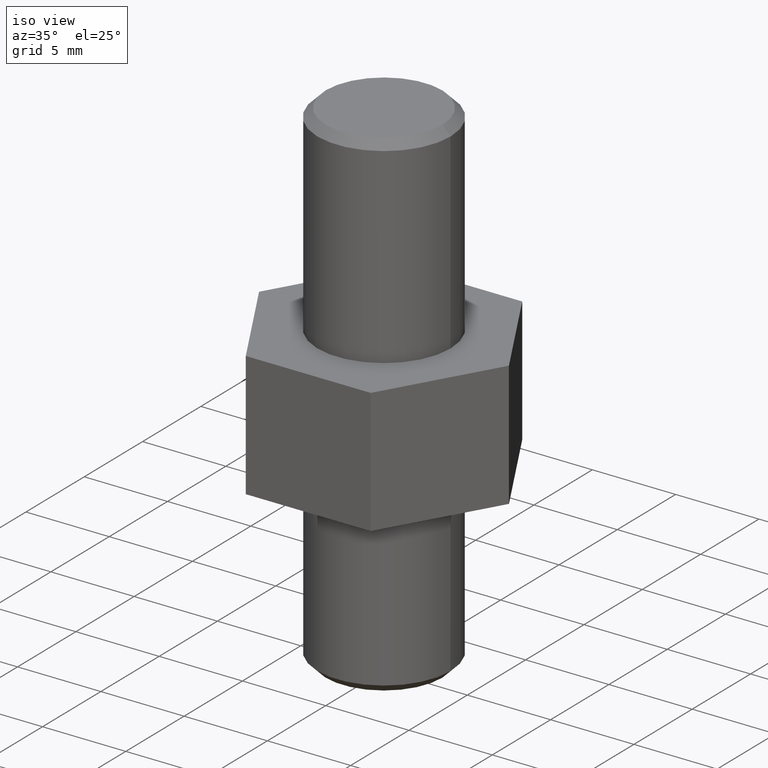
[diagram: clean part render]
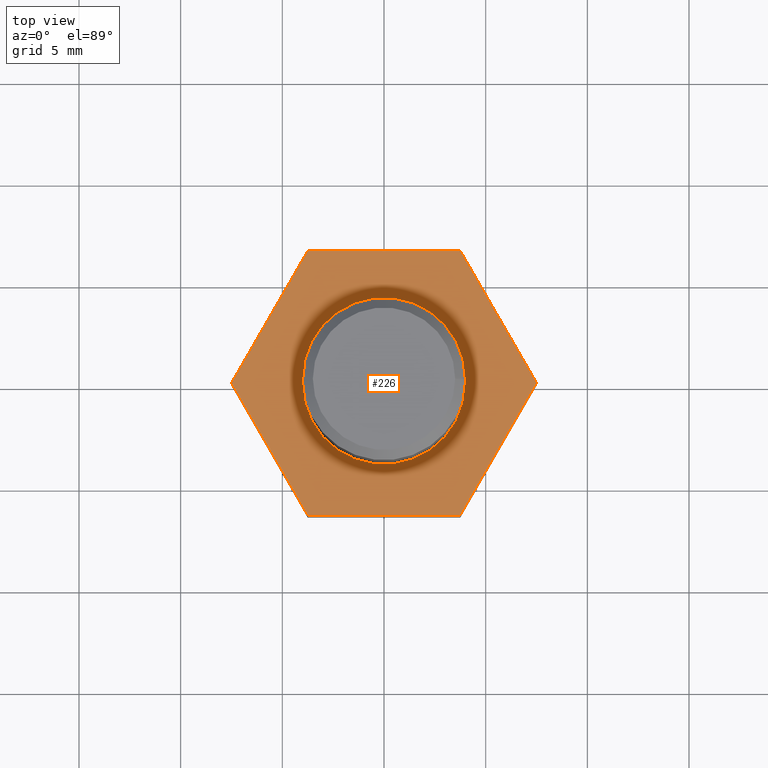
[diagram: tour spotlight — one face highlighted and labeled with its STEP entity id]
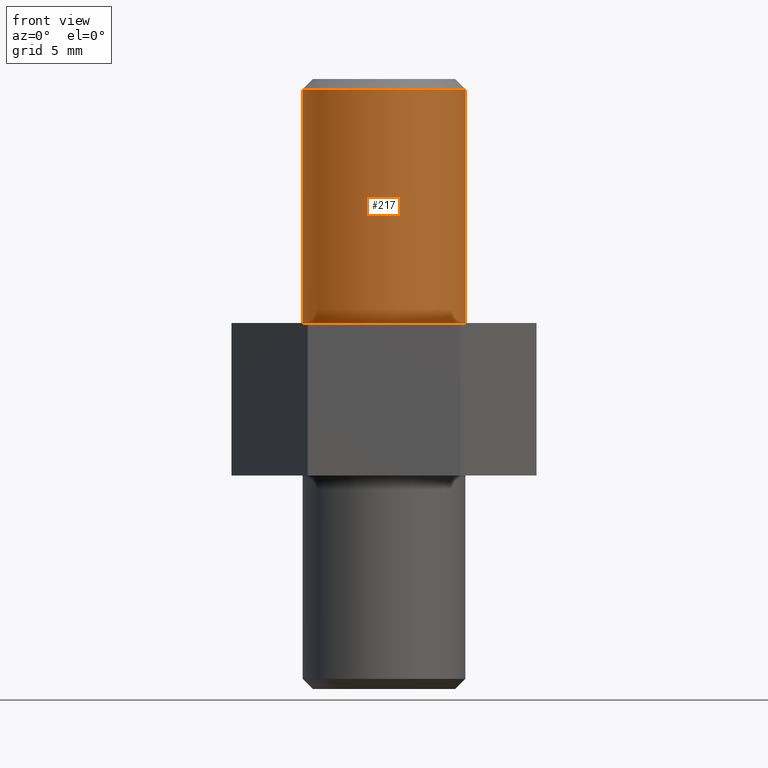
[diagram: tour spotlight — one face highlighted and labeled with its STEP entity id]
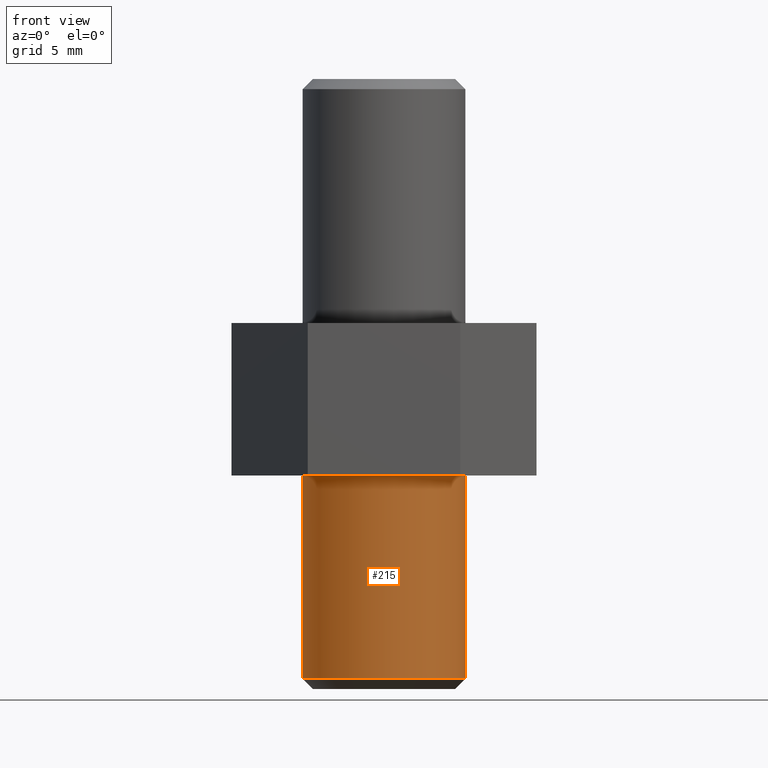
[diagram: tour spotlight — one face highlighted and labeled with its STEP entity id]
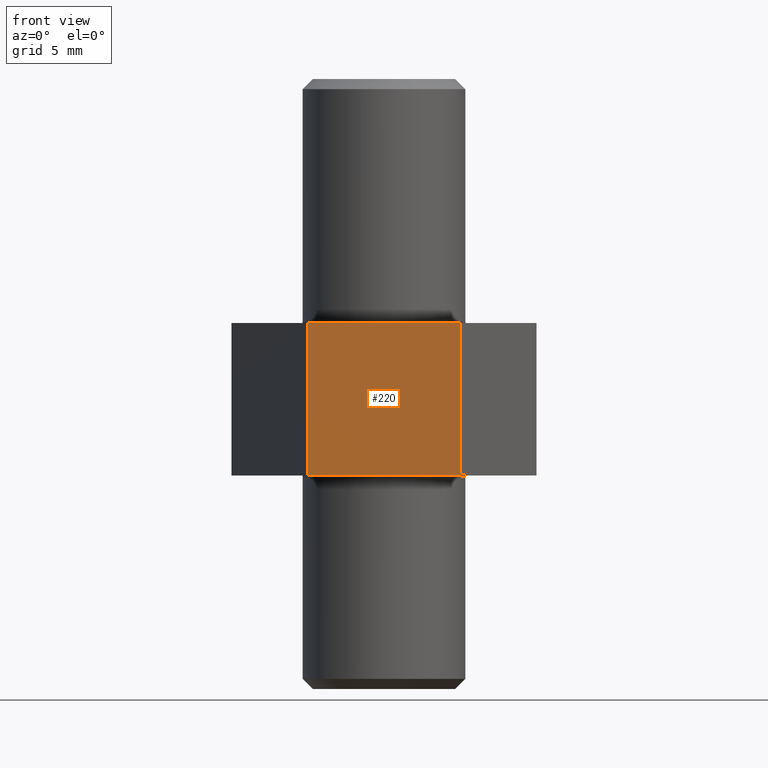
[diagram: tour spotlight — one face highlighted and labeled with its STEP entity id]
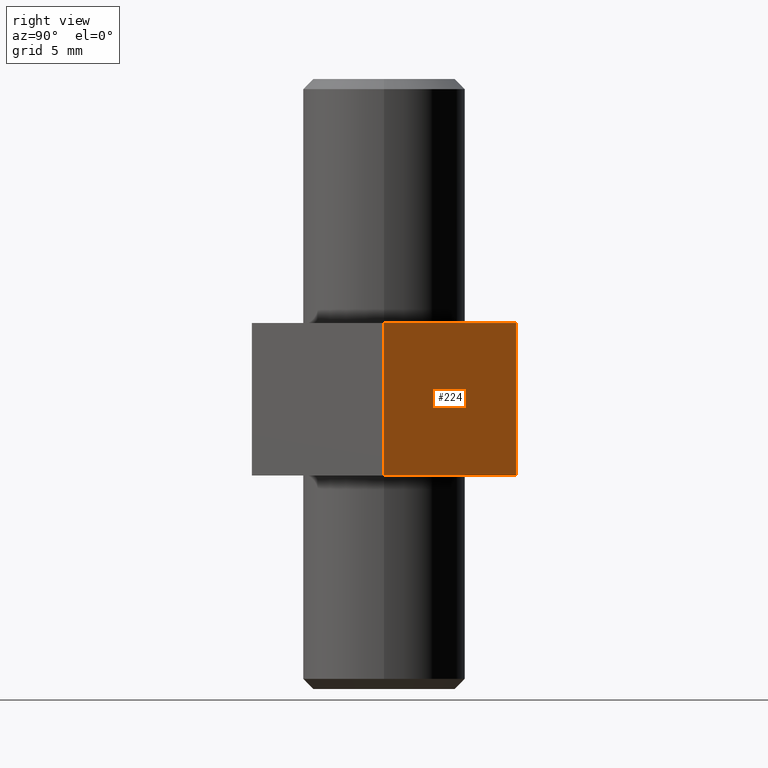
[diagram: tour spotlight — one face highlighted and labeled with its STEP entity id]
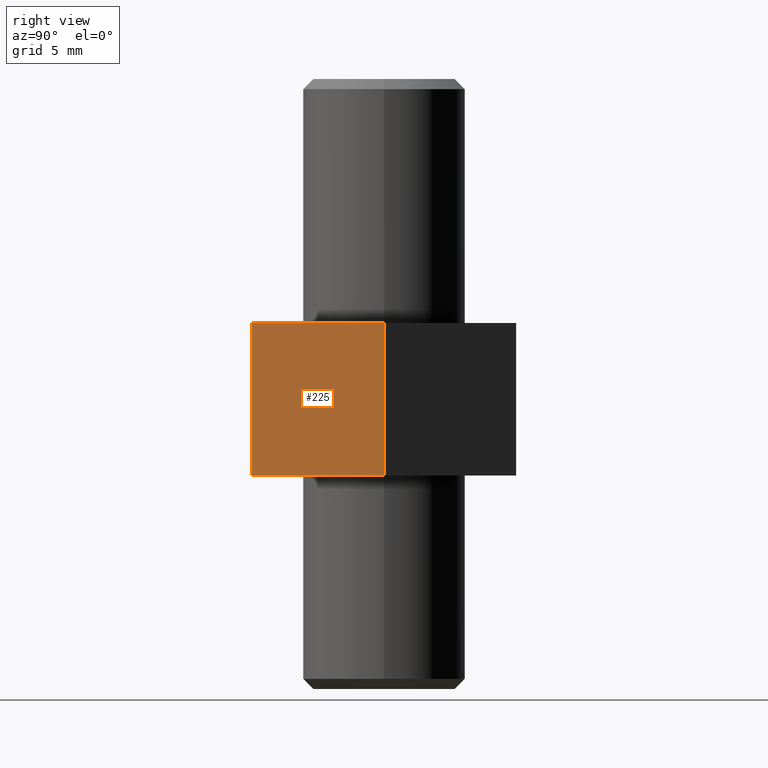
[diagram: tour spotlight — one face highlighted and labeled with its STEP entity id]
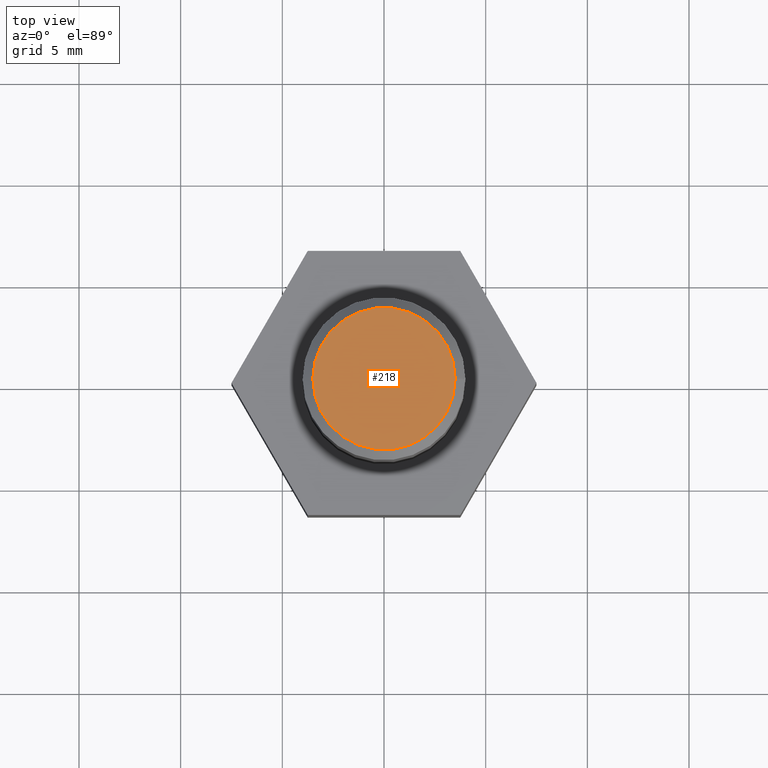
[diagram: tour spotlight — one face highlighted and labeled with its STEP entity id]
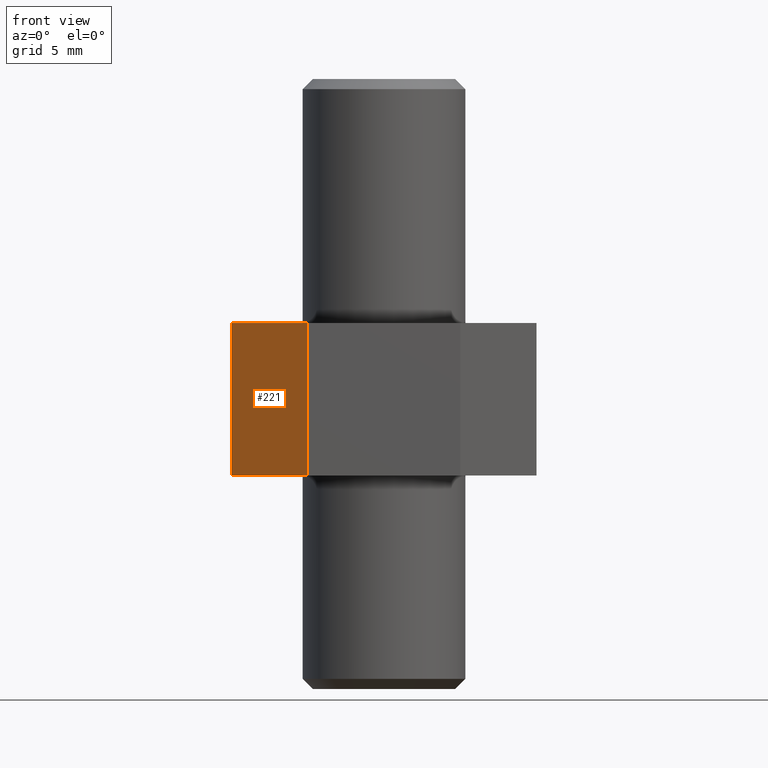
[diagram: tour spotlight — one face highlighted and labeled with its STEP entity id]
A machine part: a face-by-face anatomy tour. The part has 14 B-rep faces; the first image is the clean iso view, then the 8 largest visible faces are spotlighted one at a time (largest first), each with its STEP entity span.

Face 1 — top view, entity #226. In plain terms, the highlighted planar face has unit normal (0, 0, 1).
Definition (entity closure, byte-faithful):
#16=FACE_BOUND('',#58,.T.);
#28=PLANE('',#269);
#42=FACE_OUTER_BOUND('',#57,.T.);
#57=EDGE_LOOP('',(#204,#205,#206,#207,#208,#209));
#58=EDGE_LOOP('',(#210));
#70=LINE('',#374,#92);
#72=LINE('',#378,#94);
#74=LINE('',#382,#96);
#76=LINE('',#386,#98);
#78=LINE('',#390,#100);
#80=LINE('',#393,#102);
#92=VECTOR('',#311,10.);
#94=VECTOR('',#315,10.);
#96=VECTOR('',#319,10.);
#98=VECTOR('',#323,10.);
#100=VECTOR('',#327,10.);
#102=VECTOR('',#331,10.);
#108=CIRCLE('',#260,4.);
#114=VERTEX_POINT('',#353);
#121=VERTEX_POINT('',#371);
#122=VERTEX_POINT('',#373);
#123=VERTEX_POINT('',#377);
#124=VERTEX_POINT('',#381);
#125=VERTEX_POINT('',#385);
#126=VERTEX_POINT('',#389);
#136=EDGE_CURVE('',#114,#114,#108,.T.);
#144=EDGE_CURVE('',#122,#121,#70,.T.);
#146=EDGE_CURVE('',#123,#122,#72,.T.);
#148=EDGE_CURVE('',#124,#123,#74,.T.);
#150=EDGE_CURVE('',#125,#124,#76,.T.);
#152=EDGE_CURVE('',#126,#125,#78,.T.);
#154=EDGE_CURVE('',#121,#126,#80,.T.);
#204=ORIENTED_EDGE('',*,*,#154,.T.);
#205=ORIENTED_EDGE('',*,*,#152,.T.);
#206=ORIENTED_EDGE('',*,*,#150,.T.);
#207=ORIENTED_EDGE('',*,*,#148,.T.);
#208=ORIENTED_EDGE('',*,*,#146,.T.);
#209=ORIENTED_EDGE('',*,*,#144,.T.);
#210=ORIENTED_EDGE('',*,*,#136,.T.);
#226=ADVANCED_FACE('',(#42,#16),#28,.T.);
#260=AXIS2_PLACEMENT_3D('',#355,#296,#297);
#269=AXIS2_PLACEMENT_3D('',#394,#332,#333);
#296=DIRECTION('center_axis',(0.,0.,-1.));
#297=DIRECTION('ref_axis',(-1.,0.,0.));
#311=DIRECTION('',(1.,-1.48029736616688E-16,0.));
#315=DIRECTION('',(0.5,-0.866025403784439,0.));
#319=DIRECTION('',(-0.5,-0.866025403784439,0.));
#323=DIRECTION('',(-1.,0.,0.));
#327=DIRECTION('',(-0.5,0.866025403784438,0.));
#331=DIRECTION('',(0.5,0.866025403784439,0.));
#332=DIRECTION('center_axis',(0.,0.,1.));
#333=DIRECTION('ref_axis',(1.,0.,0.));
#353=CARTESIAN_POINT('',(4.,4.89858719658941E-16,12.75));
#355=CARTESIAN_POINT('Origin',(0.,0.,12.75));
#371=CARTESIAN_POINT('',(3.75,-6.49519052838329,12.75));
#373=CARTESIAN_POINT('',(-3.75,-6.49519052838329,12.75));
#374=CARTESIAN_POINT('',(3.75,-6.49519052838329,12.75));
#377=CARTESIAN_POINT('',(-7.5,0.,12.75));
#378=CARTESIAN_POINT('',(-3.75,-6.49519052838329,12.75));
#381=CARTESIAN_POINT('',(-3.75,6.49519052838329,12.75));
#382=CARTESIAN_POINT('',(-7.5,0.,12.75));
#385=CARTESIAN_POINT('',(3.75,6.49519052838329,12.75));
#386=CARTESIAN_POINT('',(-3.75,6.49519052838329,12.75));
#389=CARTESIAN_POINT('',(7.5,4.72454954730464E-15,12.75));
#390=CARTESIAN_POINT('',(3.75,6.49519052838329,12.75));
#393=CARTESIAN_POINT('',(7.5,4.72454954730464E-15,12.75));
#394=CARTESIAN_POINT('Origin',(1.85037170770859E-16,-9.25185853854297E-17,
12.75));

Face 2 — front view, entity #217. In plain terms, the highlighted cylindrical surface (bore or boss wall) has radius 4 mm, axis along (0, 0, 1).
Definition (entity closure, byte-faithful):
#18=CYLINDRICAL_SURFACE('',#259,4.);
#33=FACE_OUTER_BOUND('',#47,.T.);
#47=EDGE_LOOP('',(#168,#169,#170,#171));
#62=LINE('',#354,#84);
#84=VECTOR('',#295,4.);
#107=CIRCLE('',#258,4.);
#108=CIRCLE('',#260,4.);
#113=VERTEX_POINT('',#349);
#114=VERTEX_POINT('',#353);
#134=EDGE_CURVE('',#113,#113,#107,.T.);
#135=EDGE_CURVE('',#113,#114,#62,.T.);
#136=EDGE_CURVE('',#114,#114,#108,.T.);
#168=ORIENTED_EDGE('',*,*,#134,.F.);
#169=ORIENTED_EDGE('',*,*,#135,.T.);
#170=ORIENTED_EDGE('',*,*,#136,.F.);
#171=ORIENTED_EDGE('',*,*,#135,.F.);
#217=ADVANCED_FACE('',(#33),#18,.T.);
#258=AXIS2_PLACEMENT_3D('',#351,#291,#292);
#259=AXIS2_PLACEMENT_3D('',#352,#293,#294);
#260=AXIS2_PLACEMENT_3D('',#355,#296,#297);
#291=DIRECTION('center_axis',(0.,0.,1.));
#292=DIRECTION('ref_axis',(-1.,0.,0.));
#293=DIRECTION('center_axis',(0.,0.,1.));
#294=DIRECTION('ref_axis',(-1.,0.,0.));
#295=DIRECTION('',(0.,0.,-1.));
#296=DIRECTION('center_axis',(0.,0.,-1.));
#297=DIRECTION('ref_axis',(-1.,0.,0.));
#349=CARTESIAN_POINT('',(4.,4.89858719658941E-16,24.25));
#351=CARTESIAN_POINT('Origin',(0.,0.,24.25));
#352=CARTESIAN_POINT('Origin',(0.,0.,12.75));
#353=CARTESIAN_POINT('',(4.,4.89858719658941E-16,12.75));
#354=CARTESIAN_POINT('',(4.,4.89858719658941E-16,12.75));
#355=CARTESIAN_POINT('Origin',(0.,0.,12.75));

Face 3 — front view, entity #215. In plain terms, the highlighted cylindrical surface (bore or boss wall) has radius 4 mm, axis along (0, 0, 1).
Definition (entity closure, byte-faithful):
#17=CYLINDRICAL_SURFACE('',#254,4.);
#31=FACE_OUTER_BOUND('',#45,.T.);
#45=EDGE_LOOP('',(#160,#161,#162,#163));
#60=LINE('',#345,#82);
#82=VECTOR('',#285,4.);
#104=CIRCLE('',#252,4.);
#105=CIRCLE('',#255,4.);
#110=VERTEX_POINT('',#338);
#111=VERTEX_POINT('',#343);
#129=EDGE_CURVE('',#110,#110,#104,.T.);
#130=EDGE_CURVE('',#111,#111,#105,.T.);
#131=EDGE_CURVE('',#111,#110,#60,.T.);
#160=ORIENTED_EDGE('',*,*,#130,.F.);
#161=ORIENTED_EDGE('',*,*,#131,.T.);
#162=ORIENTED_EDGE('',*,*,#129,.F.);
#163=ORIENTED_EDGE('',*,*,#131,.F.);
#215=ADVANCED_FACE('',(#31),#17,.T.);
#252=AXIS2_PLACEMENT_3D('',#340,#277,#278);
#254=AXIS2_PLACEMENT_3D('',#342,#281,#282);
#255=AXIS2_PLACEMENT_3D('',#344,#283,#284);
#277=DIRECTION('center_axis',(0.,0.,-1.));
#278=DIRECTION('ref_axis',(-1.,0.,0.));
#281=DIRECTION('center_axis',(0.,0.,1.));
#282=DIRECTION('ref_axis',(-1.,0.,0.));
#283=DIRECTION('center_axis',(0.,0.,1.));
#284=DIRECTION('ref_axis',(-1.,0.,0.));
#285=DIRECTION('',(0.,0.,-1.));
#338=CARTESIAN_POINT('',(4.,-4.89858719658941E-16,-4.75));
#340=CARTESIAN_POINT('Origin',(0.,0.,-4.75));
#342=CARTESIAN_POINT('Origin',(0.,0.,0.));
#343=CARTESIAN_POINT('',(4.,4.89858719658941E-16,5.25));
#344=CARTESIAN_POINT('Origin',(0.,0.,5.25));
#345=CARTESIAN_POINT('',(4.,4.89858719658941E-16,0.));

Face 4 — front view, entity #220. In plain terms, the highlighted planar face has unit normal (-0, -1, 0).
Definition (entity closure, byte-faithful):
#22=PLANE('',#263);
#36=FACE_OUTER_BOUND('',#51,.T.);
#51=EDGE_LOOP('',(#180,#181,#182,#183));
#64=LINE('',#362,#86);
#69=LINE('',#372,#91);
#70=LINE('',#374,#92);
#71=LINE('',#375,#93);
#86=VECTOR('',#303,10.);
#91=VECTOR('',#310,10.);
#92=VECTOR('',#311,10.);
#93=VECTOR('',#312,10.);
#116=VERTEX_POINT('',#359);
#117=VERTEX_POINT('',#361);
#121=VERTEX_POINT('',#371);
#122=VERTEX_POINT('',#373);
#138=EDGE_CURVE('',#116,#117,#64,.T.);
#143=EDGE_CURVE('',#116,#121,#69,.T.);
#144=EDGE_CURVE('',#122,#121,#70,.T.);
#145=EDGE_CURVE('',#117,#122,#71,.T.);
#180=ORIENTED_EDGE('',*,*,#138,.F.);
#181=ORIENTED_EDGE('',*,*,#143,.T.);
#182=ORIENTED_EDGE('',*,*,#144,.F.);
#183=ORIENTED_EDGE('',*,*,#145,.F.);
#220=ADVANCED_FACE('',(#36),#22,.T.);
#263=AXIS2_PLACEMENT_3D('',#370,#308,#309);
#303=DIRECTION('',(-1.,1.48029736616688E-16,0.));
#308=DIRECTION('center_axis',(-1.48029736616688E-16,-1.,0.));
#309=DIRECTION('ref_axis',(1.,-1.48029736616688E-16,0.));
#310=DIRECTION('',(0.,0.,1.));
#311=DIRECTION('',(1.,-1.48029736616688E-16,0.));
#312=DIRECTION('',(0.,0.,1.));
#359=CARTESIAN_POINT('',(3.75,-6.49519052838329,5.25));
#361=CARTESIAN_POINT('',(-3.75,-6.49519052838329,5.25));
#362=CARTESIAN_POINT('',(3.75,-6.49519052838329,5.25));
#370=CARTESIAN_POINT('Origin',(-3.75,-6.49519052838329,5.25));
#371=CARTESIAN_POINT('',(3.75,-6.49519052838329,12.75));
#372=CARTESIAN_POINT('',(3.75,-6.49519052838329,5.25));
#373=CARTESIAN_POINT('',(-3.75,-6.49519052838329,12.75));
#374=CARTESIAN_POINT('',(3.75,-6.49519052838329,12.75));
#375=CARTESIAN_POINT('',(-3.75,-6.49519052838329,5.25));

Face 5 — right view, entity #224. In plain terms, the highlighted planar face has unit normal (0.866, 0.5, 0).
Definition (entity closure, byte-faithful):
#26=PLANE('',#267);
#40=FACE_OUTER_BOUND('',#55,.T.);
#55=EDGE_LOOP('',(#196,#197,#198,#199));
#68=LINE('',#369,#90);
#77=LINE('',#387,#99);
#78=LINE('',#390,#100);
#79=LINE('',#391,#101);
#90=VECTOR('',#307,10.);
#99=VECTOR('',#324,10.);
#100=VECTOR('',#327,10.);
#101=VECTOR('',#328,10.);
#115=VERTEX_POINT('',#358);
#120=VERTEX_POINT('',#367);
#125=VERTEX_POINT('',#385);
#126=VERTEX_POINT('',#389);
#142=EDGE_CURVE('',#120,#115,#68,.T.);
#151=EDGE_CURVE('',#120,#125,#77,.T.);
#152=EDGE_CURVE('',#126,#125,#78,.T.);
#153=EDGE_CURVE('',#115,#126,#79,.T.);
#196=ORIENTED_EDGE('',*,*,#142,.F.);
#197=ORIENTED_EDGE('',*,*,#151,.T.);
#198=ORIENTED_EDGE('',*,*,#152,.F.);
#199=ORIENTED_EDGE('',*,*,#153,.F.);
#224=ADVANCED_FACE('',(#40),#26,.T.);
#267=AXIS2_PLACEMENT_3D('',#388,#325,#326);
#307=DIRECTION('',(0.5,-0.866025403784438,0.));
#324=DIRECTION('',(0.,0.,1.));
#325=DIRECTION('center_axis',(0.866025403784438,0.5,0.));
#326=DIRECTION('ref_axis',(-0.5,0.866025403784438,0.));
#327=DIRECTION('',(-0.5,0.866025403784438,0.));
#328=DIRECTION('',(0.,0.,1.));
#358=CARTESIAN_POINT('',(7.5,4.72454954730464E-15,5.25));
#367=CARTESIAN_POINT('',(3.75,6.49519052838329,5.25));
#369=CARTESIAN_POINT('',(3.75,6.49519052838329,5.25));
#385=CARTESIAN_POINT('',(3.75,6.49519052838329,12.75));
#387=CARTESIAN_POINT('',(3.75,6.49519052838329,5.25));
#388=CARTESIAN_POINT('Origin',(7.5,3.33066907387547E-15,5.25));
#389=CARTESIAN_POINT('',(7.5,4.72454954730464E-15,12.75));
#390=CARTESIAN_POINT('',(3.75,6.49519052838329,12.75));
#391=CARTESIAN_POINT('',(7.5,4.72454954730464E-15,5.25));

Face 6 — right view, entity #225. In plain terms, the highlighted planar face has unit normal (0.866, -0.5, 0).
Definition (entity closure, byte-faithful):
#27=PLANE('',#268);
#41=FACE_OUTER_BOUND('',#56,.T.);
#56=EDGE_LOOP('',(#200,#201,#202,#203));
#63=LINE('',#360,#85);
#69=LINE('',#372,#91);
#79=LINE('',#391,#101);
#80=LINE('',#393,#102);
#85=VECTOR('',#302,10.);
#91=VECTOR('',#310,10.);
#101=VECTOR('',#328,10.);
#102=VECTOR('',#331,10.);
#115=VERTEX_POINT('',#358);
#116=VERTEX_POINT('',#359);
#121=VERTEX_POINT('',#371);
#126=VERTEX_POINT('',#389);
#137=EDGE_CURVE('',#115,#116,#63,.T.);
#143=EDGE_CURVE('',#116,#121,#69,.T.);
#153=EDGE_CURVE('',#115,#126,#79,.T.);
#154=EDGE_CURVE('',#121,#126,#80,.T.);
#200=ORIENTED_EDGE('',*,*,#137,.F.);
#201=ORIENTED_EDGE('',*,*,#153,.T.);
#202=ORIENTED_EDGE('',*,*,#154,.F.);
#203=ORIENTED_EDGE('',*,*,#143,.F.);
#225=ADVANCED_FACE('',(#41),#27,.T.);
#268=AXIS2_PLACEMENT_3D('',#392,#329,#330);
#302=DIRECTION('',(-0.5,-0.866025403784439,0.));
#310=DIRECTION('',(0.,0.,1.));
#328=DIRECTION('',(0.,0.,1.));
#329=DIRECTION('center_axis',(0.866025403784439,-0.5,0.));
#330=DIRECTION('ref_axis',(0.5,0.866025403784439,0.));
#331=DIRECTION('',(0.5,0.866025403784439,0.));
#358=CARTESIAN_POINT('',(7.5,4.72454954730464E-15,5.25));
#359=CARTESIAN_POINT('',(3.75,-6.49519052838329,5.25));
#360=CARTESIAN_POINT('',(7.5,4.72454954730464E-15,5.25));
#371=CARTESIAN_POINT('',(3.75,-6.49519052838329,12.75));
#372=CARTESIAN_POINT('',(3.75,-6.49519052838329,5.25));
#389=CARTESIAN_POINT('',(7.5,4.72454954730464E-15,12.75));
#391=CARTESIAN_POINT('',(7.5,4.72454954730464E-15,5.25));
#392=CARTESIAN_POINT('Origin',(3.75,-6.49519052838329,5.25));
#393=CARTESIAN_POINT('',(7.5,4.72454954730464E-15,12.75));

Face 7 — top view, entity #218. In plain terms, the highlighted planar face has unit normal (0, 0, 1).
Definition (entity closure, byte-faithful):
#20=PLANE('',#261);
#34=FACE_OUTER_BOUND('',#48,.T.);
#48=EDGE_LOOP('',(#172));
#106=CIRCLE('',#257,3.5);
#112=VERTEX_POINT('',#347);
#132=EDGE_CURVE('',#112,#112,#106,.T.);
#172=ORIENTED_EDGE('',*,*,#132,.F.);
#218=ADVANCED_FACE('',(#34),#20,.T.);
#257=AXIS2_PLACEMENT_3D('',#348,#288,#289);
#261=AXIS2_PLACEMENT_3D('',#356,#298,#299);
#288=DIRECTION('center_axis',(0.,0.,-1.));
#289=DIRECTION('ref_axis',(-1.,0.,0.));
#298=DIRECTION('center_axis',(0.,0.,1.));
#299=DIRECTION('ref_axis',(1.,0.,0.));
#347=CARTESIAN_POINT('',(3.5,-4.28626379701574E-16,24.75));
#348=CARTESIAN_POINT('Origin',(0.,0.,24.75));
#356=CARTESIAN_POINT('Origin',(-2.72118023435153E-16,0.,24.75));

Face 8 — front view, entity #221. In plain terms, the highlighted planar face has unit normal (-0.866, -0.5, 0).
Definition (entity closure, byte-faithful):
#23=PLANE('',#264);
#37=FACE_OUTER_BOUND('',#52,.T.);
#52=EDGE_LOOP('',(#184,#185,#186,#187));
#65=LINE('',#364,#87);
#71=LINE('',#375,#93);
#72=LINE('',#378,#94);
#73=LINE('',#379,#95);
#87=VECTOR('',#304,10.);
#93=VECTOR('',#312,10.);
#94=VECTOR('',#315,10.);
#95=VECTOR('',#316,10.);
#117=VERTEX_POINT('',#361);
#118=VERTEX_POINT('',#363);
#122=VERTEX_POINT('',#373);
#123=VERTEX_POINT('',#377);
#139=EDGE_CURVE('',#117,#118,#65,.T.);
#145=EDGE_CURVE('',#117,#122,#71,.T.);
#146=EDGE_CURVE('',#123,#122,#72,.T.);
#147=EDGE_CURVE('',#118,#123,#73,.T.);
#184=ORIENTED_EDGE('',*,*,#139,.F.);
#185=ORIENTED_EDGE('',*,*,#145,.T.);
#186=ORIENTED_EDGE('',*,*,#146,.F.);
#187=ORIENTED_EDGE('',*,*,#147,.F.);
#221=ADVANCED_FACE('',(#37),#23,.T.);
#264=AXIS2_PLACEMENT_3D('',#376,#313,#314);
#304=DIRECTION('',(-0.5,0.866025403784439,0.));
#312=DIRECTION('',(0.,0.,1.));
#313=DIRECTION('center_axis',(-0.866025403784439,-0.5,0.));
#314=DIRECTION('ref_axis',(0.5,-0.866025403784439,0.));
#315=DIRECTION('',(0.5,-0.866025403784439,0.));
#316=DIRECTION('',(0.,0.,1.));
#361=CARTESIAN_POINT('',(-3.75,-6.49519052838329,5.25));
#363=CARTESIAN_POINT('',(-7.5,0.,5.25));
#364=CARTESIAN_POINT('',(-3.75,-6.49519052838329,5.25));
#373=CARTESIAN_POINT('',(-3.75,-6.49519052838329,12.75));
#375=CARTESIAN_POINT('',(-3.75,-6.49519052838329,5.25));
#376=CARTESIAN_POINT('Origin',(-7.5,1.11022302462516E-15,5.25));
#377=CARTESIAN_POINT('',(-7.5,0.,12.75));
#378=CARTESIAN_POINT('',(-3.75,-6.49519052838329,12.75));
#379=CARTESIAN_POINT('',(-7.5,0.,5.25));